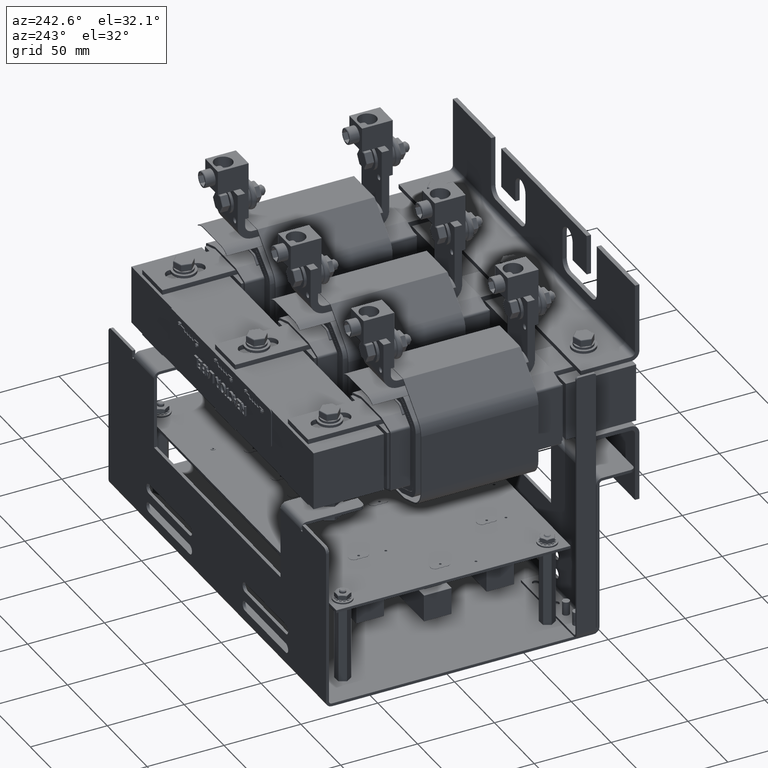
[diagram: clean part render]
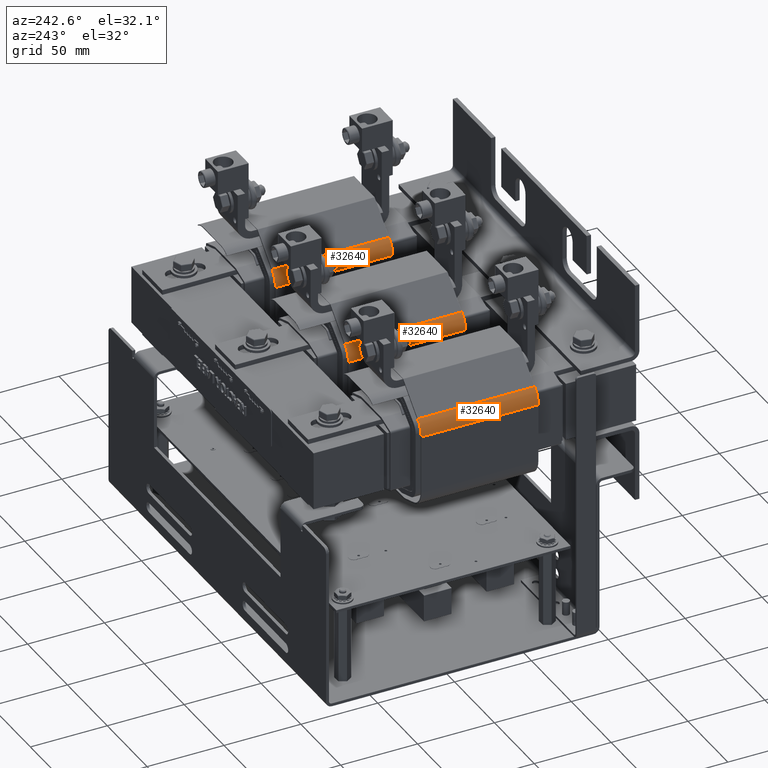
[diagram: same view with one multi-face feature highlighted, each face labeled with its STEP entity id]
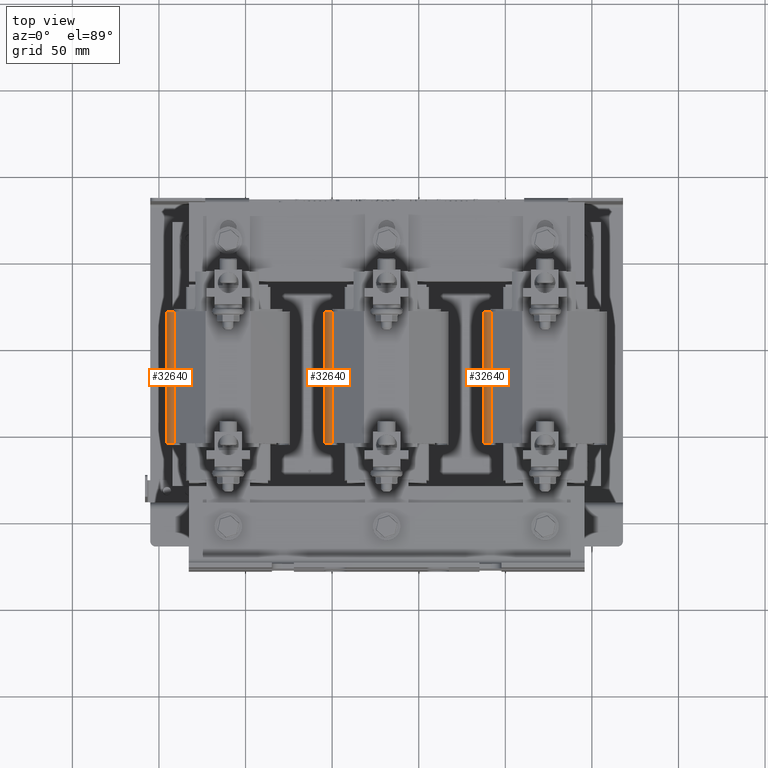
[diagram: same view with one multi-face feature highlighted, each face labeled with its STEP entity id]
A machine part, auxiliary view. The highlighted faces form ONE feature: a constant-radius fillet chain: 3 tangent blend faces with common blend radius 12.827 mm. The faces share edges in the B-rep.
A second angle (top view) of the same feature is appended — it is thin or edge-on in the first view.
Their STEP definitions:
[1] entity #32640 (Cylinder):
#2509=CIRCLE('',#35680,0.504999999989169);
#2510=CIRCLE('',#35681,0.504999999989169);
#3395=CYLINDRICAL_SURFACE('',#35679,0.504999999989169);
#4711=FACE_OUTER_BOUND('',#6576,.T.);
#6576=EDGE_LOOP('',(#27015,#27016,#27017,#27018));
#9456=LINE('',#54518,#12546);
#9457=LINE('',#54524,#12547);
#12546=VECTOR('',#42131,0.393700787401575);
#12547=VECTOR('',#42138,0.393700787401575);
#15556=VERTEX_POINT('',#54514);
#15557=VERTEX_POINT('',#54516);
#15558=VERTEX_POINT('',#54520);
#15559=VERTEX_POINT('',#54522);
#19559=EDGE_CURVE('',#15556,#15557,#9456,.T.);
#19560=EDGE_CURVE('',#15558,#15556,#2509,.T.);
#19561=EDGE_CURVE('',#15559,#15557,#2510,.T.);
#19562=EDGE_CURVE('',#15558,#15559,#9457,.T.);
#27015=ORIENTED_EDGE('',*,*,#19560,.T.);
#27016=ORIENTED_EDGE('',*,*,#19559,.T.);
#27017=ORIENTED_EDGE('',*,*,#19561,.F.);
#27018=ORIENTED_EDGE('',*,*,#19562,.F.);
#32640=ADVANCED_FACE('',(#4711),#3395,.T.);
#35679=AXIS2_PLACEMENT_3D('',#54519,#42132,#42133);
#35680=AXIS2_PLACEMENT_3D('',#54521,#42134,#42135);
#35681=AXIS2_PLACEMENT_3D('',#54523,#42136,#42137);
#42131=DIRECTION('',(0.,0.,1.));
#42132=DIRECTION('center_axis',(0.,0.,1.));
#42133=DIRECTION('ref_axis',(-0.644995714554851,0.764186186871941,0.));
#42134=DIRECTION('center_axis',(0.,0.,1.));
#42135=DIRECTION('ref_axis',(-0.644995714554851,0.764186186871941,0.));
#42136=DIRECTION('center_axis',(0.,0.,1.));
#42137=DIRECTION('ref_axis',(-0.644995714554851,0.764186186871941,0.));
#42138=DIRECTION('',(0.,0.,1.));
#54514=CARTESIAN_POINT('',(-2.779999999962,1.50000000000481,0.));
#54516=CARTESIAN_POINT('',(-2.779999999962,1.50000000000481,3.));
#54518=CARTESIAN_POINT('',(-2.779999999962,1.50000000000481,0.));
#54519=CARTESIAN_POINT('Origin',(-2.27499999998086,1.50000000000322,0.));
#54520=CARTESIAN_POINT('',(-2.60072283582073,1.88591402436132,0.));
#54521=CARTESIAN_POINT('Origin',(-2.27499999998086,1.50000000000322,0.));
#54522=CARTESIAN_POINT('',(-2.60072283582073,1.88591402436132,3.));
#54523=CARTESIAN_POINT('Origin',(-2.27499999998086,1.50000000000322,3.));
#54524=CARTESIAN_POINT('',(-2.60072283582073,1.88591402436132,0.));
[2] entity #32640 (Cylinder):
#2509=CIRCLE('',#35680,0.504999999989169);
#2510=CIRCLE('',#35681,0.504999999989169);
#3395=CYLINDRICAL_SURFACE('',#35679,0.504999999989169);
#4711=FACE_OUTER_BOUND('',#6576,.T.);
#6576=EDGE_LOOP('',(#27015,#27016,#27017,#27018));
#9456=LINE('',#54518,#12546);
#9457=LINE('',#54524,#12547);
#12546=VECTOR('',#42131,0.393700787401575);
#12547=VECTOR('',#42138,0.393700787401575);
#15556=VERTEX_POINT('',#54514);
#15557=VERTEX_POINT('',#54516);
#15558=VERTEX_POINT('',#54520);
#15559=VERTEX_POINT('',#54522);
#19559=EDGE_CURVE('',#15556,#15557,#9456,.T.);
#19560=EDGE_CURVE('',#15558,#15556,#2509,.T.);
#19561=EDGE_CURVE('',#15559,#15557,#2510,.T.);
#19562=EDGE_CURVE('',#15558,#15559,#9457,.T.);
#27015=ORIENTED_EDGE('',*,*,#19560,.T.);
#27016=ORIENTED_EDGE('',*,*,#19559,.T.);
#27017=ORIENTED_EDGE('',*,*,#19561,.F.);
#27018=ORIENTED_EDGE('',*,*,#19562,.F.);
#32640=ADVANCED_FACE('',(#4711),#3395,.T.);
#35679=AXIS2_PLACEMENT_3D('',#54519,#42132,#42133);
#35680=AXIS2_PLACEMENT_3D('',#54521,#42134,#42135);
#35681=AXIS2_PLACEMENT_3D('',#54523,#42136,#42137);
#42131=DIRECTION('',(0.,0.,1.));
#42132=DIRECTION('center_axis',(0.,0.,1.));
#42133=DIRECTION('ref_axis',(-0.644995714554851,0.764186186871941,0.));
#42134=DIRECTION('center_axis',(0.,0.,1.));
#42135=DIRECTION('ref_axis',(-0.644995714554851,0.764186186871941,0.));
#42136=DIRECTION('center_axis',(0.,0.,1.));
#42137=DIRECTION('ref_axis',(-0.644995714554851,0.764186186871941,0.));
#42138=DIRECTION('',(0.,0.,1.));
#54514=CARTESIAN_POINT('',(-2.779999999962,1.50000000000481,0.));
#54516=CARTESIAN_POINT('',(-2.779999999962,1.50000000000481,3.));
#54518=CARTESIAN_POINT('',(-2.779999999962,1.50000000000481,0.));
#54519=CARTESIAN_POINT('Origin',(-2.27499999998086,1.50000000000322,0.));
#54520=CARTESIAN_POINT('',(-2.60072283582073,1.88591402436132,0.));
#54521=CARTESIAN_POINT('Origin',(-2.27499999998086,1.50000000000322,0.));
#54522=CARTESIAN_POINT('',(-2.60072283582073,1.88591402436132,3.));
#54523=CARTESIAN_POINT('Origin',(-2.27499999998086,1.50000000000322,3.));
#54524=CARTESIAN_POINT('',(-2.60072283582073,1.88591402436132,0.));
[3] entity #32640 (Cylinder):
#2509=CIRCLE('',#35680,0.504999999989169);
#2510=CIRCLE('',#35681,0.504999999989169);
#3395=CYLINDRICAL_SURFACE('',#35679,0.504999999989169);
#4711=FACE_OUTER_BOUND('',#6576,.T.);
#6576=EDGE_LOOP('',(#27015,#27016,#27017,#27018));
#9456=LINE('',#54518,#12546);
#9457=LINE('',#54524,#12547);
#12546=VECTOR('',#42131,0.393700787401575);
#12547=VECTOR('',#42138,0.393700787401575);
#15556=VERTEX_POINT('',#54514);
#15557=VERTEX_POINT('',#54516);
#15558=VERTEX_POINT('',#54520);
#15559=VERTEX_POINT('',#54522);
#19559=EDGE_CURVE('',#15556,#15557,#9456,.T.);
#19560=EDGE_CURVE('',#15558,#15556,#2509,.T.);
#19561=EDGE_CURVE('',#15559,#15557,#2510,.T.);
#19562=EDGE_CURVE('',#15558,#15559,#9457,.T.);
#27015=ORIENTED_EDGE('',*,*,#19560,.T.);
#27016=ORIENTED_EDGE('',*,*,#19559,.T.);
#27017=ORIENTED_EDGE('',*,*,#19561,.F.);
#27018=ORIENTED_EDGE('',*,*,#19562,.F.);
#32640=ADVANCED_FACE('',(#4711),#3395,.T.);
#35679=AXIS2_PLACEMENT_3D('',#54519,#42132,#42133);
#35680=AXIS2_PLACEMENT_3D('',#54521,#42134,#42135);
#35681=AXIS2_PLACEMENT_3D('',#54523,#42136,#42137);
#42131=DIRECTION('',(0.,0.,1.));
#42132=DIRECTION('center_axis',(0.,0.,1.));
#42133=DIRECTION('ref_axis',(-0.644995714554851,0.764186186871941,0.));
#42134=DIRECTION('center_axis',(0.,0.,1.));
#42135=DIRECTION('ref_axis',(-0.644995714554851,0.764186186871941,0.));
#42136=DIRECTION('center_axis',(0.,0.,1.));
#42137=DIRECTION('ref_axis',(-0.644995714554851,0.764186186871941,0.));
#42138=DIRECTION('',(0.,0.,1.));
#54514=CARTESIAN_POINT('',(-2.779999999962,1.50000000000481,0.));
#54516=CARTESIAN_POINT('',(-2.779999999962,1.50000000000481,3.));
#54518=CARTESIAN_POINT('',(-2.779999999962,1.50000000000481,0.));
#54519=CARTESIAN_POINT('Origin',(-2.27499999998086,1.50000000000322,0.));
#54520=CARTESIAN_POINT('',(-2.60072283582073,1.88591402436132,0.));
#54521=CARTESIAN_POINT('Origin',(-2.27499999998086,1.50000000000322,0.));
#54522=CARTESIAN_POINT('',(-2.60072283582073,1.88591402436132,3.));
#54523=CARTESIAN_POINT('Origin',(-2.27499999998086,1.50000000000322,3.));
#54524=CARTESIAN_POINT('',(-2.60072283582073,1.88591402436132,0.));